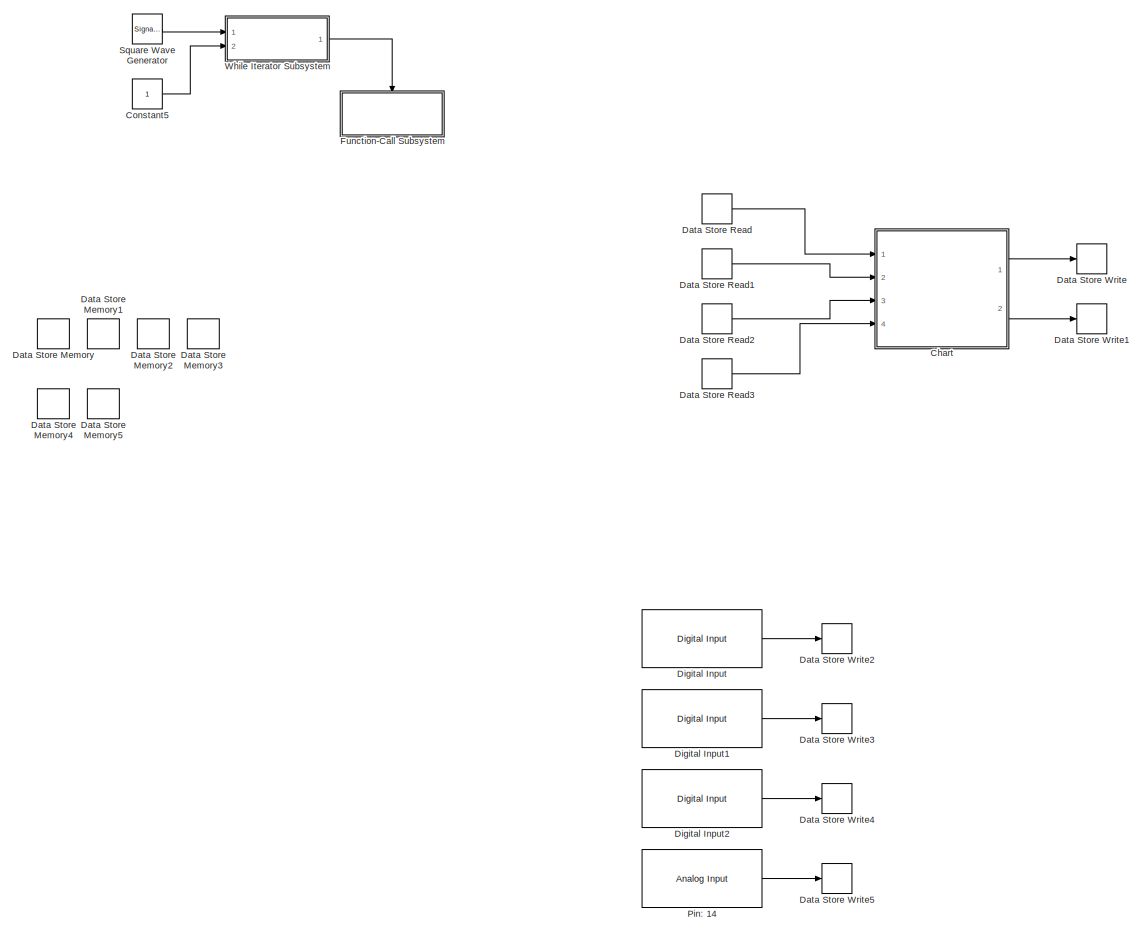
[diagram: root canvas - part 1/2, left side, full height]
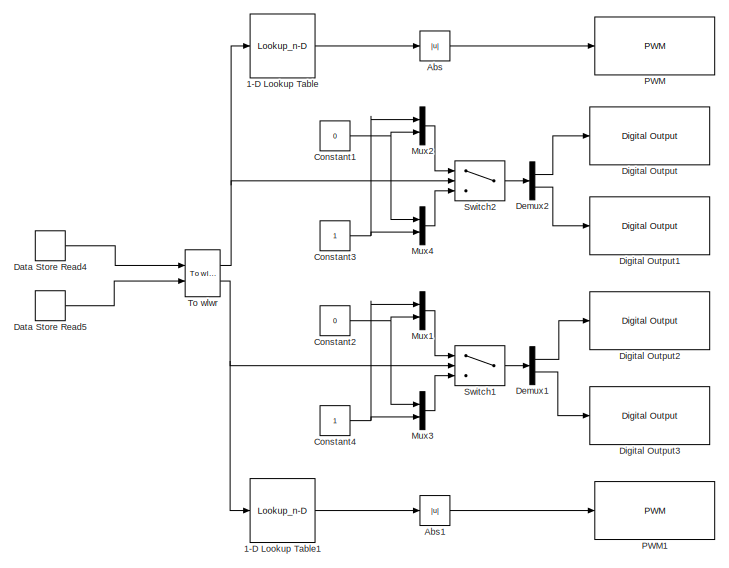
[diagram: root canvas - part 2/2, bottom right region]
MODEL slx_b913504930e4
KIND model
CONFIG AbsTol = auto
CONFIG EnableMultiTasking = off
CONFIG FixedStep = auto
CONFIG MaxStep = auto
CONFIG MinStep = auto
CONFIG RelTol = 1e-3
CONFIG SampleTimeConstraint = Unconstrained
CONFIG SolverName = FixedStepAuto
CONFIG StartTime = 0.0
CONFIG StopTime = 5000
BLOCK [Lookup_n-D] 1-D Lookup Table
  BreakpointsForDimension1 = WheelSpeed
  InputPortMap = u0
  InternalRulePriority = Speed
  NumberOfTableDimensions = 1
  Ports = [1, 1]
  RndMeth = Simplest
  Table = InputPWM
BLOCK [Lookup_n-D] 1-D Lookup Table1
  BreakpointsForDimension1 = WheelSpeed
  InputPortMap = u0
  InternalRulePriority = Speed
  NumberOfTableDimensions = 1
  Ports = [1, 1]
  RndMeth = Simplest
  Table = InputPWM
BLOCK [Abs] Abs
  SaturateOnIntegerOverflow = off
BLOCK [Abs] Abs1
  SaturateOnIntegerOverflow = off
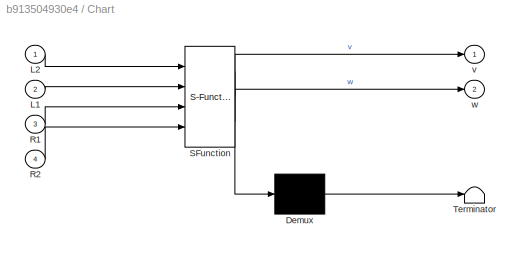
BLOCK [SubSystem] Chart
  ErrorFcn = Stateflow.Translate.translate
  PermitHierarchicalResolution = ExplicitOnly
  Ports = [4, 2]
  RequestExecContextInheritance = off
  SFBlockType = Chart
  TreatAsAtomicUnit = on
BLOCK [Demux] Chart/ Demux 
  Outputs = 1
  Ports = [1, 1]
BLOCK [S-Function] Chart/ SFunction 
  EnableBusSupport = on
  FunctionName = sf_sfun
  PortCounts = [4 3]
  Ports = [4, 3]
  SFcnIsStateOwnerBlock = off
  SFunctionDeploymentMode = off
  Tag = Stateflow S-Function 3
BLOCK [Terminator] Chart/ Terminator 
BLOCK [Inport] Chart/L1
  Port = 2
BLOCK [Inport] Chart/L2
BLOCK [Inport] Chart/R1
  Port = 3
BLOCK [Inport] Chart/R2
  Port = 4
BLOCK [Outport] Chart/v
BLOCK [Outport] Chart/w
  Port = 2
BLOCK [Constant] Constant1
  Value = 0
BLOCK [Constant] Constant2
  Value = 0
BLOCK [Constant] Constant3
BLOCK [Constant] Constant4
BLOCK [Constant] Constant5
  Commented = on
BLOCK [DataStoreMemory] Data Store Memory
  DataStoreName = L2
  ShowAdditionalParam = off
  WriteAfterWriteMsg = warning
BLOCK [DataStoreMemory] Data Store Memory1
  DataStoreName = L1
  ShowAdditionalParam = off
  WriteAfterWriteMsg = warning
BLOCK [DataStoreMemory] Data Store Memory2
  DataStoreName = R1
  ShowAdditionalParam = off
  WriteAfterWriteMsg = warning
BLOCK [DataStoreMemory] Data Store Memory3
  DataStoreName = R2
  ShowAdditionalParam = off
  WriteAfterWriteMsg = warning
BLOCK [DataStoreMemory] Data Store Memory4
  DataStoreName = v
  ShowAdditionalParam = off
  WriteAfterWriteMsg = warning
BLOCK [DataStoreMemory] Data Store Memory5
  DataStoreName = w
  ShowAdditionalParam = off
  WriteAfterWriteMsg = warning
BLOCK [DataStoreRead] Data Store Read
  DataStoreName = L2
  IndexOptions = Index vector (dialog)
  Indices = 1
  OutputSizes = 1
  Ports = [0, 1]
BLOCK [DataStoreRead] Data Store Read1
  DataStoreName = L1
  IndexOptions = Index vector (dialog)
  Indices = 1
  OutputSizes = 1
  Ports = [0, 1]
BLOCK [DataStoreRead] Data Store Read2
  DataStoreName = R1
  IndexOptions = Index vector (dialog)
  Indices = 1
  OutputSizes = 1
  Ports = [0, 1]
BLOCK [DataStoreRead] Data Store Read3
  DataStoreName = R2
  IndexOptions = Index vector (dialog)
  Indices = 1
  OutputSizes = 1
  Ports = [0, 1]
BLOCK [DataStoreRead] Data Store Read4
  DataStoreName = v
  IndexOptions = Index vector (dialog)
  Indices = 1
  OutputSizes = 1
  Ports = [0, 1]
BLOCK [DataStoreRead] Data Store Read5
  DataStoreName = w
  IndexOptions = Index vector (dialog)
  Indices = 1
  OutputSizes = 1
  Ports = [0, 1]
BLOCK [DataStoreWrite] Data Store Write
  DataStoreName = v
  IndexOptions = Index vector (dialog)
  Indices = 1
  OutputSizes = 1
  Ports = [1]
BLOCK [DataStoreWrite] Data Store Write1
  DataStoreName = w
  IndexOptions = Index vector (dialog)
  Indices = 1
  OutputSizes = 1
  Ports = [1]
BLOCK [DataStoreWrite] Data Store Write2
  DataStoreName = L2
  IndexOptions = Index vector (dialog)
  Indices = 1
  OutputSizes = 1
  Ports = [1]
BLOCK [DataStoreWrite] Data Store Write3
  DataStoreName = L1
  IndexOptions = Index vector (dialog)
  Indices = 1
  OutputSizes = 1
  Ports = [1]
BLOCK [DataStoreWrite] Data Store Write4
  DataStoreName = R1
  IndexOptions = Index vector (dialog)
  Indices = 1
  OutputSizes = 1
  Ports = [1]
BLOCK [DataStoreWrite] Data Store Write5
  DataStoreName = R2
  IndexOptions = Index vector (dialog)
  Indices = 1
  OutputSizes = 1
  Ports = [1]
BLOCK [Demux] Demux1
  Outputs = 2
  Ports = [1, 2]
BLOCK [Demux] Demux2
  Outputs = 2
  Ports = [1, 2]
BLOCK [Reference] Digital Input  REF=arduinolib/Digital Input
  Ports = [0, 1]
  SourceBlock = arduinolib/Digital Input
  SourceProductBaseCode = ARDUINO
  SourceType = Arduino Digital Input
BLOCK [Reference] Digital Input1  REF=arduinolib/Digital Input
  Ports = [0, 1]
  SourceBlock = arduinolib/Digital Input
  SourceProductBaseCode = ARDUINO
  SourceType = Arduino Digital Input
BLOCK [Reference] Digital Input2  REF=arduinolib/Digital Input
  Ports = [0, 1]
  SourceBlock = arduinolib/Digital Input
  SourceProductBaseCode = ARDUINO
  SourceType = Arduino Digital Input
BLOCK [Reference] Digital Output  REF=arduinolib/Digital Output
  Ports = [1]
  SourceBlock = arduinolib/Digital Output
  SourceProductBaseCode = ARDUINO
  SourceType = Arduino Digital Output
BLOCK [Reference] Digital Output1  REF=arduinolib/Digital Output
  Ports = [1]
  SourceBlock = arduinolib/Digital Output
  SourceProductBaseCode = ARDUINO
  SourceType = Arduino Digital Output
BLOCK [Reference] Digital Output2  REF=arduinolib/Digital Output
  Ports = [1]
  SourceBlock = arduinolib/Digital Output
  SourceProductBaseCode = ARDUINO
  SourceType = Arduino Digital Output
BLOCK [Reference] Digital Output3  REF=arduinolib/Digital Output
  Ports = [1]
  SourceBlock = arduinolib/Digital Output
  SourceProductBaseCode = ARDUINO
  SourceType = Arduino Digital Output
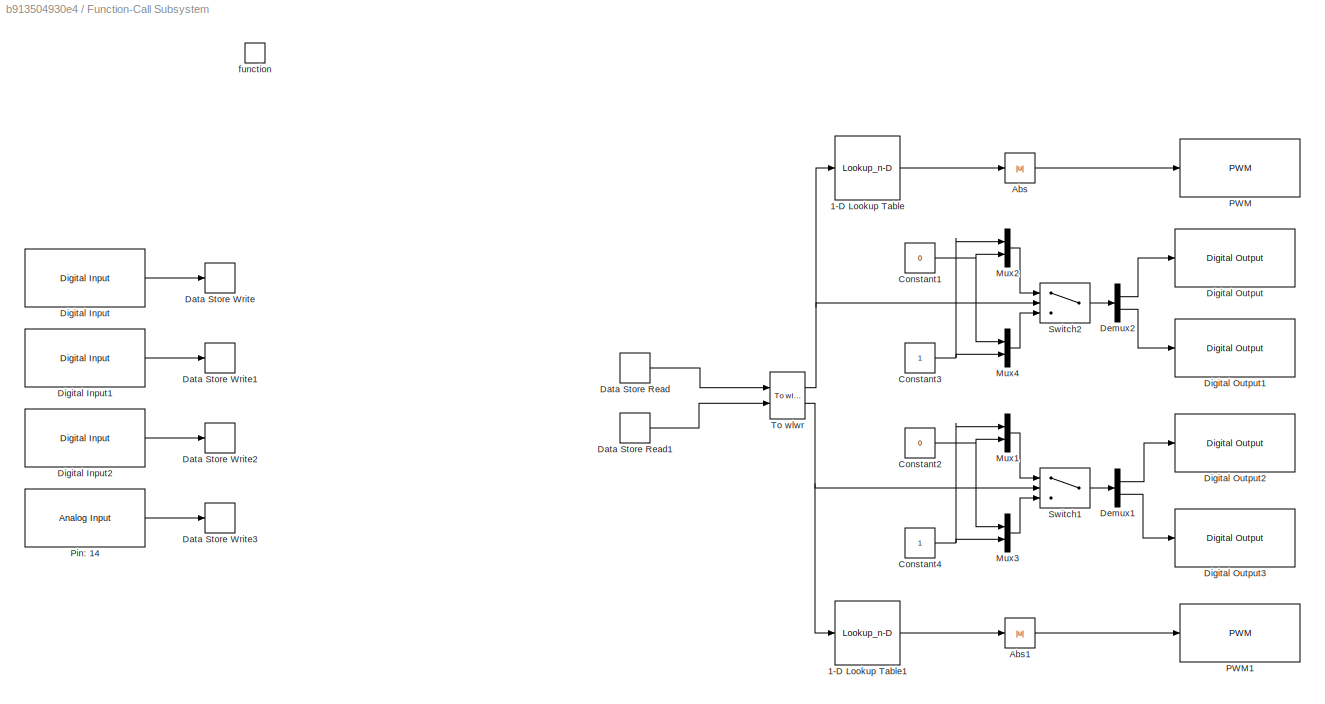
BLOCK [SubSystem] Function-Call Subsystem
  Commented = on
  Ports = [0, 0, 0, 1]
  RequestExecContextInheritance = off
  TreatAsAtomicUnit = on
BLOCK [Lookup_n-D] Function-Call Subsystem/1-D Lookup Table
  BreakpointsForDimension1 = WheelSpeed
  InputPortMap = u0
  InternalRulePriority = Speed
  NumberOfTableDimensions = 1
  Ports = [1, 1]
  RndMeth = Simplest
  Table = InputPWM
BLOCK [Lookup_n-D] Function-Call Subsystem/1-D Lookup Table1
  BreakpointsForDimension1 = WheelSpeed
  InputPortMap = u0
  InternalRulePriority = Speed
  NumberOfTableDimensions = 1
  Ports = [1, 1]
  RndMeth = Simplest
  Table = InputPWM
BLOCK [Abs] Function-Call Subsystem/Abs
  SaturateOnIntegerOverflow = off
BLOCK [Abs] Function-Call Subsystem/Abs1
  SaturateOnIntegerOverflow = off
BLOCK [Constant] Function-Call Subsystem/Constant1
  Value = 0
BLOCK [Constant] Function-Call Subsystem/Constant2
  Value = 0
BLOCK [Constant] Function-Call Subsystem/Constant3
BLOCK [Constant] Function-Call Subsystem/Constant4
BLOCK [DataStoreRead] Function-Call Subsystem/Data Store Read
  DataStoreName = v
  IndexOptions = Index vector (dialog)
  Indices = 1
  OutputSizes = 1
  Ports = [0, 1]
BLOCK [DataStoreRead] Function-Call Subsystem/Data Store Read1
  DataStoreName = w
  IndexOptions = Index vector (dialog)
  Indices = 1
  OutputSizes = 1
  Ports = [0, 1]
BLOCK [DataStoreWrite] Function-Call Subsystem/Data Store Write
  DataStoreName = L2
  IndexOptions = Index vector (dialog)
  Indices = 1
  OutputSizes = 1
  Ports = [1]
BLOCK [DataStoreWrite] Function-Call Subsystem/Data Store Write1
  DataStoreName = L1
  IndexOptions = Index vector (dialog)
  Indices = 1
  OutputSizes = 1
  Ports = [1]
BLOCK [DataStoreWrite] Function-Call Subsystem/Data Store Write2
  DataStoreName = R1
  IndexOptions = Index vector (dialog)
  Indices = 1
  OutputSizes = 1
  Ports = [1]
BLOCK [DataStoreWrite] Function-Call Subsystem/Data Store Write3
  DataStoreName = R2
  IndexOptions = Index vector (dialog)
  Indices = 1
  OutputSizes = 1
  Ports = [1]
BLOCK [Demux] Function-Call Subsystem/Demux1
  Outputs = 2
  Ports = [1, 2]
BLOCK [Demux] Function-Call Subsystem/Demux2
  Outputs = 2
  Ports = [1, 2]
BLOCK [Reference] Function-Call Subsystem/Digital Input  REF=arduinolib/Digital Input
  Ports = [0, 1]
  SourceBlock = arduinolib/Digital Input
  SourceProductBaseCode = ARDUINO
  SourceType = Arduino Digital Input
BLOCK [Reference] Function-Call Subsystem/Digital Input1  REF=arduinolib/Digital Input
  Ports = [0, 1]
  SourceBlock = arduinolib/Digital Input
  SourceProductBaseCode = ARDUINO
  SourceType = Arduino Digital Input
BLOCK [Reference] Function-Call Subsystem/Digital Input2  REF=arduinolib/Digital Input
  Ports = [0, 1]
  SourceBlock = arduinolib/Digital Input
  SourceProductBaseCode = ARDUINO
  SourceType = Arduino Digital Input
BLOCK [Reference] Function-Call Subsystem/Digital Output  REF=arduinolib/Digital Output
  Ports = [1]
  SourceBlock = arduinolib/Digital Output
  SourceProductBaseCode = ARDUINO
  SourceType = Arduino Digital Output
BLOCK [Reference] Function-Call Subsystem/Digital Output1  REF=arduinolib/Digital Output
  Ports = [1]
  SourceBlock = arduinolib/Digital Output
  SourceProductBaseCode = ARDUINO
  SourceType = Arduino Digital Output
BLOCK [Reference] Function-Call Subsystem/Digital Output2  REF=arduinolib/Digital Output
  Ports = [1]
  SourceBlock = arduinolib/Digital Output
  SourceProductBaseCode = ARDUINO
  SourceType = Arduino Digital Output
BLOCK [Reference] Function-Call Subsystem/Digital Output3  REF=arduinolib/Digital Output
  Ports = [1]
  SourceBlock = arduinolib/Digital Output
  SourceProductBaseCode = ARDUINO
  SourceType = Arduino Digital Output
BLOCK [Mux] Function-Call Subsystem/Mux1
  DisplayOption = bar
  Inputs = 2
  Ports = [2, 1]
BLOCK [Mux] Function-Call Subsystem/Mux2
  DisplayOption = bar
  Inputs = 2
  Ports = [2, 1]
BLOCK [Mux] Function-Call Subsystem/Mux3
  DisplayOption = bar
  Inputs = 2
  Ports = [2, 1]
BLOCK [Mux] Function-Call Subsystem/Mux4
  DisplayOption = bar
  Inputs = 2
  Ports = [2, 1]
BLOCK [Reference] Function-Call Subsystem/PWM  REF=arduinolib/PWM
  Ports = [1]
  SourceBlock = arduinolib/PWM
  SourceProductBaseCode = ARDUINO
  SourceType = Arduino PWM
BLOCK [Reference] Function-Call Subsystem/PWM1  REF=arduinolib/PWM
  Ports = [1]
  SourceBlock = arduinolib/PWM
  SourceProductBaseCode = ARDUINO
  SourceType = Arduino PWM
BLOCK [Reference] Function-Call Subsystem/Pin: 14  REF=arduinolib/Analog Input
  Ports = [0, 1]
  SourceBlock = arduinolib/Analog Input
  SourceProductBaseCode = ARDUINO
  SourceType = Arduino Analog Input
BLOCK [Switch] Function-Call Subsystem/Switch1
  Criteria = u2 > Threshold
  InputSameDT = off
  SaturateOnIntegerOverflow = off
BLOCK [Switch] Function-Call Subsystem/Switch2
  Criteria = u2 > Threshold
  InputSameDT = off
  SaturateOnIntegerOverflow = off
BLOCK [Reference] Function-Call Subsystem/To wlwr  REF=mobileRoboticsTrainingLib/To wlwr
  Ports = [2, 2]
  SourceBlock = mobileRoboticsTrainingLib/To wlwr
  SourceProductName = Mobile Robotics Training Library
  SourceType = To wlwr
BLOCK [TriggerPort] Function-Call Subsystem/function
  Ports = []
  StatesWhenEnabling = held
  TriggerType = either
  VariantControl = (inherit)
BLOCK [Mux] Mux1
  DisplayOption = bar
  Inputs = 2
  Ports = [2, 1]
BLOCK [Mux] Mux2
  DisplayOption = bar
  Inputs = 2
  Ports = [2, 1]
BLOCK [Mux] Mux3
  DisplayOption = bar
  Inputs = 2
  Ports = [2, 1]
BLOCK [Mux] Mux4
  DisplayOption = bar
  Inputs = 2
  Ports = [2, 1]
BLOCK [Reference] PWM  REF=arduinolib/PWM
  Ports = [1]
  SourceBlock = arduinolib/PWM
  SourceProductBaseCode = ARDUINO
  SourceType = Arduino PWM
BLOCK [Reference] PWM1  REF=arduinolib/PWM
  Ports = [1]
  SourceBlock = arduinolib/PWM
  SourceProductBaseCode = ARDUINO
  SourceType = Arduino PWM
BLOCK [Reference] Pin: 14  REF=arduinolib/Analog Input
  Ports = [0, 1]
  SourceBlock = arduinolib/Analog Input
  SourceProductBaseCode = ARDUINO
  SourceType = Arduino Analog Input
BLOCK [SignalGenerator] Square Wave Generator
  Commented = on
  Ports = [0, 1]
  Units = rad/sec
  WaveForm = square
BLOCK [Switch] Switch1
  Criteria = u2 > Threshold
  InputSameDT = off
  SaturateOnIntegerOverflow = off
BLOCK [Switch] Switch2
  Criteria = u2 > Threshold
  InputSameDT = off
  SaturateOnIntegerOverflow = off
BLOCK [Reference] To wlwr  REF=mobileRoboticsTrainingLib/To wlwr
  Ports = [2, 2]
  SourceBlock = mobileRoboticsTrainingLib/To wlwr
  SourceProductName = Mobile Robotics Training Library
  SourceType = To wlwr
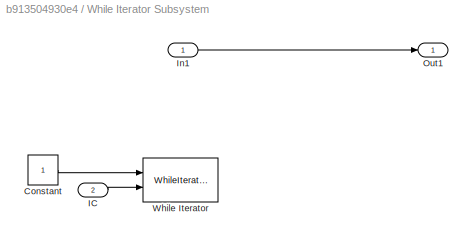
BLOCK [SubSystem] While Iterator Subsystem
  Commented = on
  Ports = [2, 1]
  RequestExecContextInheritance = off
  TreatAsAtomicUnit = on
BLOCK [Constant] While Iterator Subsystem/Constant
BLOCK [Inport] While Iterator Subsystem/IC
  Port = 2
BLOCK [Inport] While Iterator Subsystem/In1
BLOCK [Outport] While Iterator Subsystem/Out1
BLOCK [WhileIterator] While Iterator Subsystem/While Iterator
  Ports = [2]
LINE 1-D Lookup Table1:1 -> Abs1:1
LINE 1-D Lookup Table:1 -> Abs:1
LINE Abs1:1 -> PWM1:1
LINE Abs:1 -> PWM:1
LINE Chart:1 -> Data Store Write:1
LINE Chart:2 -> Data Store Write1:1
NET Constant1:1 -> Mux2:2, Mux4:1
NET Constant2:1 -> Mux1:2, Mux3:1
NET Constant3:1 -> Mux2:1, Mux4:2
NET Constant4:1 -> Mux1:1, Mux3:2
LINE Constant5:1 -> While Iterator Subsystem:2
LINE Data Store Read1:1 -> Chart:2
LINE Data Store Read2:1 -> Chart:3
LINE Data Store Read3:1 -> Chart:4
LINE Data Store Read4:1 -> To wlwr:1
LINE Data Store Read5:1 -> To wlwr:2
LINE Data Store Read:1 -> Chart:1
LINE Demux1:1 -> Digital Output2:1
LINE Demux1:2 -> Digital Output3:1
LINE Demux2:1 -> Digital Output:1
LINE Demux2:2 -> Digital Output1:1
LINE Digital Input1:1 -> Data Store Write3:1
LINE Digital Input2:1 -> Data Store Write4:1
LINE Digital Input:1 -> Data Store Write2:1
LINE Function-Call Subsystem/1-D Lookup Table1:1 -> Function-Call Subsystem/Abs1:1
LINE Function-Call Subsystem/1-D Lookup Table:1 -> Function-Call Subsystem/Abs:1
LINE Function-Call Subsystem/Abs1:1 -> Function-Call Subsystem/PWM1:1
LINE Function-Call Subsystem/Abs:1 -> Function-Call Subsystem/PWM:1
NET Function-Call Subsystem/Constant1:1 -> Function-Call Subsystem/Mux2:2, Function-Call Subsystem/Mux4:1
NET Function-Call Subsystem/Constant2:1 -> Function-Call Subsystem/Mux1:2, Function-Call Subsystem/Mux3:1
NET Function-Call Subsystem/Constant3:1 -> Function-Call Subsystem/Mux2:1, Function-Call Subsystem/Mux4:2
NET Function-Call Subsystem/Constant4:1 -> Function-Call Subsystem/Mux1:1, Function-Call Subsystem/Mux3:2
LINE Function-Call Subsystem/Data Store Read1:1 -> Function-Call Subsystem/To wlwr:2
LINE Function-Call Subsystem/Data Store Read:1 -> Function-Call Subsystem/To wlwr:1
LINE Function-Call Subsystem/Demux1:1 -> Function-Call Subsystem/Digital Output2:1
LINE Function-Call Subsystem/Demux1:2 -> Function-Call Subsystem/Digital Output3:1
LINE Function-Call Subsystem/Demux2:1 -> Function-Call Subsystem/Digital Output:1
LINE Function-Call Subsystem/Demux2:2 -> Function-Call Subsystem/Digital Output1:1
LINE Function-Call Subsystem/Digital Input1:1 -> Function-Call Subsystem/Data Store Write1:1
LINE Function-Call Subsystem/Digital Input2:1 -> Function-Call Subsystem/Data Store Write2:1
LINE Function-Call Subsystem/Digital Input:1 -> Function-Call Subsystem/Data Store Write:1
LINE Function-Call Subsystem/Mux1:1 -> Function-Call Subsystem/Switch1:1
LINE Function-Call Subsystem/Mux2:1 -> Function-Call Subsystem/Switch2:1
LINE Function-Call Subsystem/Mux3:1 -> Function-Call Subsystem/Switch1:3
LINE Function-Call Subsystem/Mux4:1 -> Function-Call Subsystem/Switch2:3
LINE Function-Call Subsystem/Pin: 14:1 -> Function-Call Subsystem/Data Store Write3:1
LINE Function-Call Subsystem/Switch1:1 -> Function-Call Subsystem/Demux1:1
LINE Function-Call Subsystem/Switch2:1 -> Function-Call Subsystem/Demux2:1
NET Function-Call Subsystem/To wlwr:1 -> Function-Call Subsystem/1-D Lookup Table:1, Function-Call Subsystem/Switch2:2
NET Function-Call Subsystem/To wlwr:2 -> Function-Call Subsystem/1-D Lookup Table1:1, Function-Call Subsystem/Switch1:2
LINE Mux1:1 -> Switch1:1
LINE Mux2:1 -> Switch2:1
LINE Mux3:1 -> Switch1:3
LINE Mux4:1 -> Switch2:3
LINE Pin: 14:1 -> Data Store Write5:1
LINE Square Wave Generator:1 -> While Iterator Subsystem:1
LINE Switch1:1 -> Demux1:1
LINE Switch2:1 -> Demux2:1
NET To wlwr:1 -> 1-D Lookup Table:1, Switch2:2
NET To wlwr:2 -> 1-D Lookup Table1:1, Switch1:2
LINE While Iterator Subsystem/Constant:1 -> While Iterator Subsystem/While Iterator:1
LINE While Iterator Subsystem/IC:1 -> While Iterator Subsystem/While Iterator:2
LINE While Iterator Subsystem/In1:1 -> While Iterator Subsystem/Out1:1
LINE While Iterator Subsystem:1 -> Function-Call Subsystem:trigger
note: NET lines group one-source signal fan-out (src -> all destinations, sorted); 1:1 wires keep LINE
CHART Chart states=4 transitions=6
  STATE_LABEL 'Begin\nentry:\nv = 0;\n'
  STATE_LABEL 'AdjustRight\nentry:\nw =- 0.6;\n'
  STATE_LABEL 'AdjustLeft\nentry:\nw = 0.7;\n'
  STATE_LABEL 'Start\nentry:\nv = 0.06;\nw = 0.05;'
CHART  states=0 transitions=0
